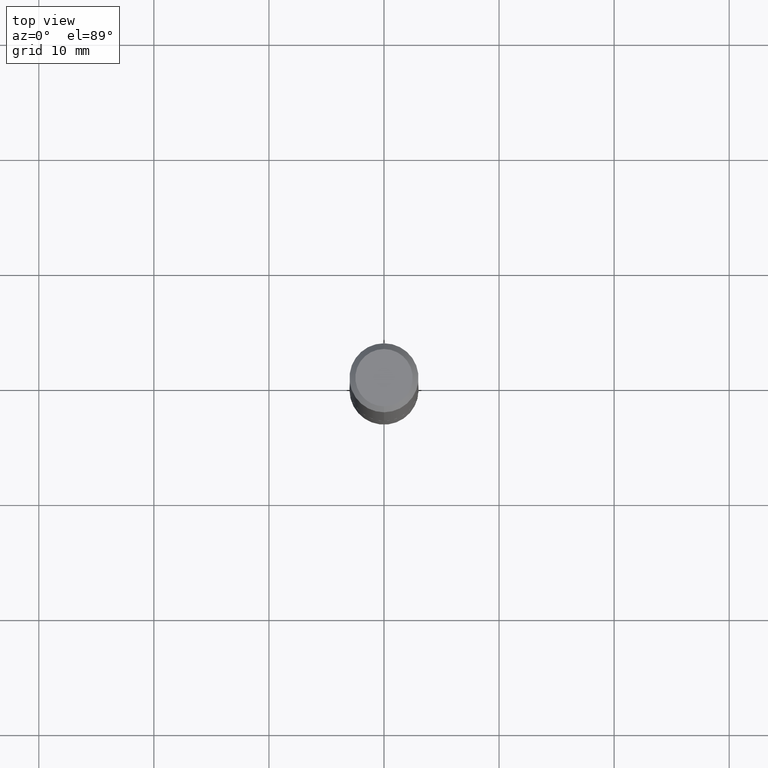
[diagram: clean part render]
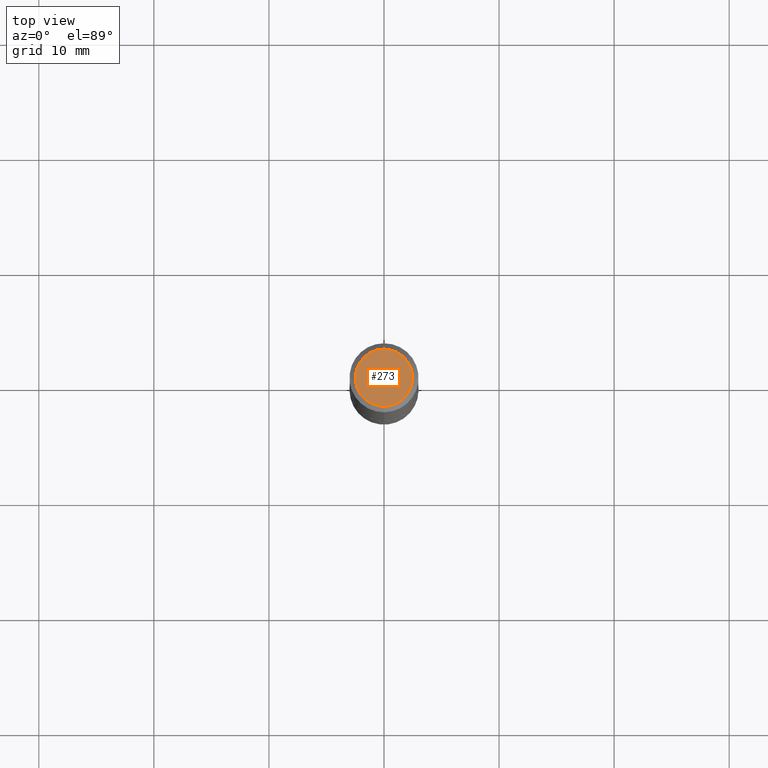
[diagram: same view with one face highlighted and labeled with its STEP entity id]
A machine part, top view. The second image highlights one B-rep face of the part: STEP entity #273.
In plain terms, the highlighted planar face has unit normal (0, -0, -1).
Its self-contained STEP definition (entity closure, byte-faithful):
#8 = EDGE_LOOP ( 'NONE', ( #90, #374 ) ) ;
#13 = CARTESIAN_POINT ( 'NONE',  ( -6.262385987125453187E-45, 8.934986396310881592E-31, 2.559948239242435609E-16 ) ) ;
#37 = VERTEX_POINT ( 'NONE', #385 ) ;
#44 = CARTESIAN_POINT ( 'NONE',  ( 7.548582654578847672E-16, 0.09809999999999977072, -8.640356993448713013E-17 ) ) ;
#68 = DIRECTION ( 'NONE',  ( -2.446293987951365198E-29, 3.490299631587476868E-15, 1.000000000000000000 ) ) ;
#85 = EDGE_CURVE ( 'NONE', #267, #37, #293, .T. ) ;
#90 = ORIENTED_EDGE ( 'NONE', *, *, #85, .T. ) ;
#114 = AXIS2_PLACEMENT_3D ( 'NONE', #216, #408, #413 ) ;
#157 = AXIS2_PLACEMENT_3D ( 'NONE', #13, #209, #212 ) ;
#174 = FACE_OUTER_BOUND ( 'NONE', #8, .T. ) ;
#187 = AXIS2_PLACEMENT_3D ( 'NONE', #362, #68, #392 ) ;
#209 = DIRECTION ( 'NONE',  ( -2.446293987951365198E-29, 3.490299631587476868E-15, 1.000000000000000000 ) ) ;
#212 = DIRECTION ( 'NONE',  ( -6.982962677686265922E-15, -1.000000000000000000, 3.490299631587477262E-15 ) ) ;
#216 = CARTESIAN_POINT ( 'NONE',  ( 6.850286386810210746E-16, 0.09809999999999977072, -2.144009818966088613E-16 ) ) ;
#246 = EDGE_CURVE ( 'NONE', #37, #267, #378, .T. ) ;
#267 = VERTEX_POINT ( 'NONE', #44 ) ;
#273 = ADVANCED_FACE ( 'NONE', ( #174 ), #369, .F. ) ;
#293 = CIRCLE ( 'NONE', #187, 0.09809999999999977072 ) ;
#362 = CARTESIAN_POINT ( 'NONE',  ( -6.262385987125453187E-45, 8.934986396310881592E-31, 2.559948239242435609E-16 ) ) ;
#369 = PLANE ( 'NONE',  #114 ) ;
#374 = ORIENTED_EDGE ( 'NONE', *, *, #246, .T. ) ;
#378 = CIRCLE ( 'NONE', #157, 0.09809999999999977072 ) ;
#385 = CARTESIAN_POINT ( 'NONE',  ( -7.416198335591014190E-16, -0.09809999999999977072, 5.983932177829742273E-16 ) ) ;
#392 = DIRECTION ( 'NONE',  ( -6.982962677686265922E-15, -1.000000000000000000, 3.490299631587477262E-15 ) ) ;
#408 = DIRECTION ( 'NONE',  ( 2.446293987951364918E-29, -3.490299631587476868E-15, -1.000000000000000000 ) ) ;
#413 = DIRECTION ( 'NONE',  ( 6.982962677686265922E-15, 1.000000000000000000, -3.490299631587476868E-15 ) ) ;